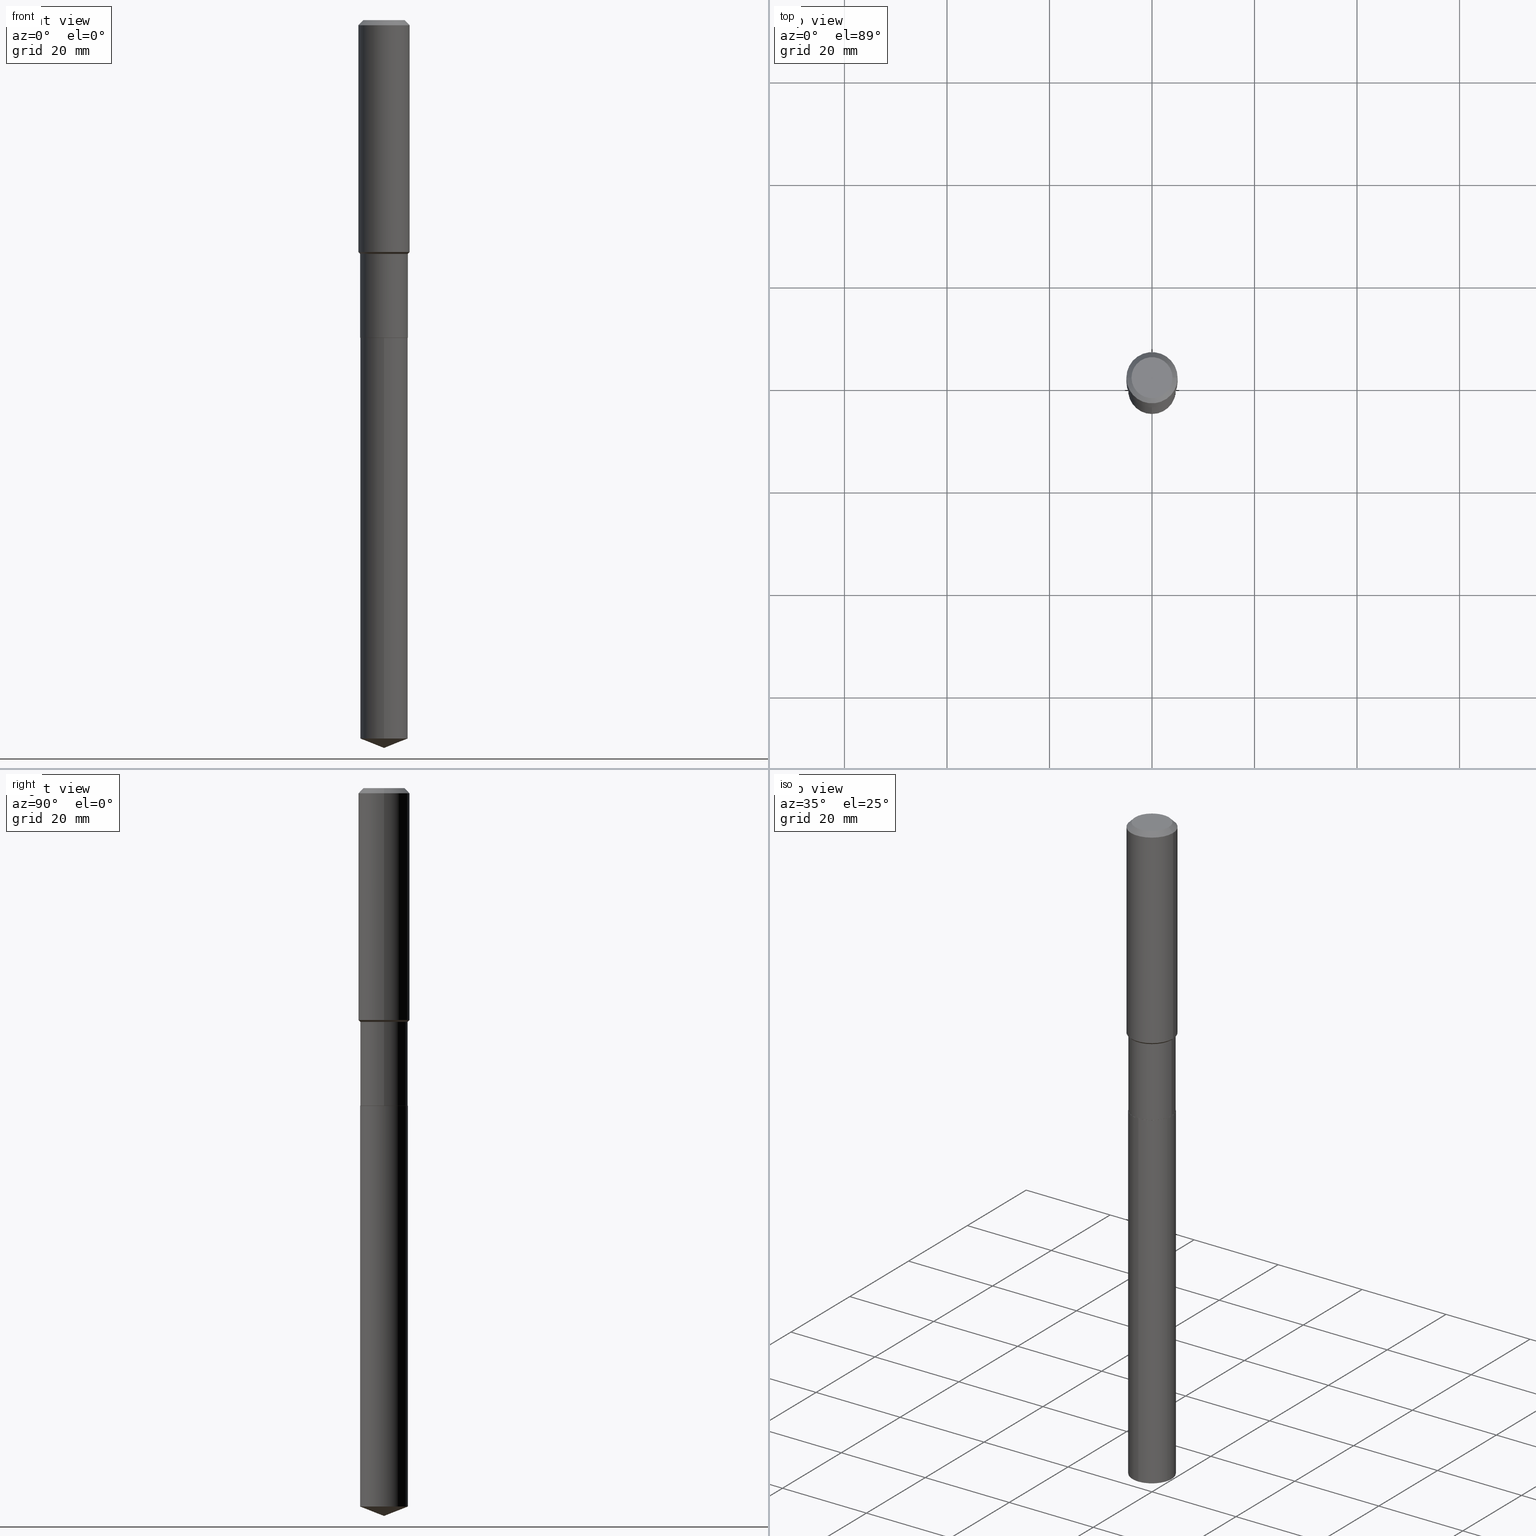
[diagram: canonical four-view strip — front | top / right | iso, engineering-drawing reading convention]
A machine part, canonical four-view strip (front | top / right | iso — engineering-drawing reading convention). The complete STEP part file that produces these views, byte-faithful:
ISO-10303-21;
HEADER;
FILE_DESCRIPTION (( 'STEP AP203' ),
    '1' );
FILE_NAME ('66669.STEP',
    '2024-04-25T03:18:00',
    ( '' ),
    ( '' ),
    'SwSTEP 2.0',
    'SolidWorks 2023',
    '' );
FILE_SCHEMA (( 'CONFIG_CONTROL_DESIGN' ));
ENDSEC;

DATA;
#1 = CARTESIAN_POINT ( 'NONE',  ( 9.627810689950943645E-31, -1.374596203102555315E-16, -0.03937000000000024508 ) ) ;
#2 = EDGE_CURVE ( 'NONE', #48, #182, #49, .T. ) ;
#3 = DIRECTION ( 'NONE',  ( -2.445468806185136597E-29, 3.491481338843145583E-15, 1.000000000000000000 ) ) ;
#4 = ORIENTED_EDGE ( 'NONE', *, *, #108, .T. ) ;
#5 = AXIS2_PLACEMENT_3D ( 'NONE', #399, #218, #180 ) ;
#6 = CARTESIAN_POINT ( 'NONE',  ( 9.627810689950943645E-31, -1.374596203102555315E-16, -0.03937000000000024508 ) ) ;
#7 = CONICAL_SURFACE ( 'NONE', #289, 0.1825499999999999623, 0.7853981633975507526 ) ;
#8 = ADVANCED_BREP_SHAPE_REPRESENTATION ( '66669', ( #93, #423, #388 ), #155 ) ;
#9 = ADVANCED_FACE ( 'NONE', ( #356 ), #204, .T. ) ;
#10 = CARTESIAN_POINT ( 'NONE',  ( 1.300648477808922684E-15, 0.1830499999999914418, -2.440899999999999626 ) ) ;
#11 = DATE_AND_TIME ( #352, #339 ) ;
#12 = DIRECTION ( 'NONE',  ( 2.438088387897960049E-29, -3.491481338843145188E-15, -1.000000000000000000 ) ) ;
#13 = ORIENTED_EDGE ( 'NONE', *, *, #307, .F. ) ;
#14 = CARTESIAN_POINT ( 'NONE',  ( 9.627810689950943645E-31, -1.374596203102555315E-16, -0.03937000000000024508 ) ) ;
#15 = APPLICATION_PROTOCOL_DEFINITION ( 'international standard', 'config_control_design', 1994, #68 ) ;
#16 = ORIENTED_EDGE ( 'NONE', *, *, #59, .T. ) ;
#17 = CARTESIAN_POINT ( 'NONE',  ( -0.1825499999999999623, -7.222611808678056579E-15, -2.440899999999999181 ) ) ;
#18 = DIRECTION ( 'NONE',  ( 1.000000000000000000, -6.982962677686264344E-15, 0.000000000000000000 ) ) ;
#19 = ORIENTED_EDGE ( 'NONE', *, *, #295, .T. ) ;
#20 = DIRECTION ( 'NONE',  ( 0.7071067811865453523, -7.319954787623248157E-15, -0.7071067811865496822 ) ) ;
#21 = AXIS2_PLACEMENT_3D ( 'NONE', #14, #280, #156 ) ;
#22 = DIRECTION ( 'NONE',  ( -6.982962677686265922E-15, -1.000000000000000000, 3.498627837350006195E-15 ) ) ;
#23 = FACE_OUTER_BOUND ( 'NONE', #50, .T. ) ;
#24 = EDGE_CURVE ( 'NONE', #407, #182, #165, .T. ) ;
#25 = EDGE_LOOP ( 'NONE', ( #338, #89, #364, #127 ) ) ;
#26 = DIRECTION ( 'NONE',  ( -6.497071151882119836E-15, -0.9304175679820245737, 0.3665012267242972466 ) ) ;
#27 = FACE_OUTER_BOUND ( 'NONE', #273, .T. ) ;
#28 = UNCERTAINTY_MEASURE_WITH_UNIT (LENGTH_MEASURE( 1.000000000000000082E-05 ), #118, 'distance_accuracy_value', 'NONE');
#29 = CALENDAR_DATE ( 2024, 24, 4 ) ;
#30 = ORIENTED_EDGE ( 'NONE', *, *, #415, .F. ) ;
#31 = DIRECTION ( 'NONE',  ( -2.445468806185136597E-29, 3.491481338843145583E-15, 1.000000000000000000 ) ) ;
#32 = VERTEX_POINT ( 'NONE', #277 ) ;
#33 = AXIS2_PLACEMENT_3D ( 'NONE', #297, #485, #58 ) ;
#34 = CIRCLE ( 'NONE', #345, 0.1968500000000000250 ) ;
#35 = CARTESIAN_POINT ( 'NONE',  ( 5.969144809017297917E-29, -8.522356799982231388E-15, -2.440899999999999181 ) ) ;
#36 = DIRECTION ( 'NONE',  ( -2.445468806185136597E-29, 3.491481338843145583E-15, 1.000000000000000000 ) ) ;
#37 = EDGE_LOOP ( 'NONE', ( #379, #194, #137, #106 ) ) ;
#38 = CARTESIAN_POINT ( 'NONE',  ( 0.1825499999999999623, -9.797096636793858259E-15, -2.440899999999999181 ) ) ;
#39 = CONICAL_SURFACE ( 'NONE', #264, 0.1830499999999999072, 0.7853981633974495002 ) ;
#40 = EDGE_CURVE ( 'NONE', #323, #42, #466, .T. ) ;
#41 = CARTESIAN_POINT ( 'NONE',  ( 9.627810689950943645E-31, -1.374596203102555315E-16, -0.03937000000000024508 ) ) ;
#42 = VERTEX_POINT ( 'NONE', #283 ) ;
#43 = DIRECTION ( 'NONE',  ( 1.000000000000000000, -6.982962677686265922E-15, 0.000000000000000000 ) ) ;
#44 = AXIS2_PLACEMENT_3D ( 'NONE', #66, #36, #276 ) ;
#45 = DIRECTION ( 'NONE',  ( 1.000000000000000000, -6.982962677686265922E-15, 0.000000000000000000 ) ) ;
#46 = DIRECTION ( 'NONE',  ( -2.445428369358333970E-29, 3.491539246680648506E-15, 1.000000000000000000 ) ) ;
#47 = PERSON_AND_ORGANIZATION_ROLE ( 'creator' ) ;
#48 = VERTEX_POINT ( 'NONE', #469 ) ;
#49 = CIRCLE ( 'NONE', #71, 0.1968500000000000250 ) ;
#50 = EDGE_LOOP ( 'NONE', ( #85, #296, #474 ) ) ;
#51 = PERSON_AND_ORGANIZATION ( #308, #404 ) ;
#52 = ORIENTED_EDGE ( 'NONE', *, *, #248, .T. ) ;
#53 = DIRECTION ( 'NONE',  ( 0.7071067811865483499, -2.468850131082265738E-15, 0.7071067811865466846 ) ) ;
#54 = VERTEX_POINT ( 'NONE', #286 ) ;
#55 = FACE_OUTER_BOUND ( 'NONE', #325, .T. ) ;
#56 = EDGE_CURVE ( 'NONE', #460, #187, #259, .T. ) ;
#57 = AXIS2_PLACEMENT_3D ( 'NONE', #319, #465, #83 ) ;
#58 = DIRECTION ( 'NONE',  ( 6.982962677686265922E-15, 1.000000000000000000, -3.491539246680648506E-15 ) ) ;
#59 = EDGE_CURVE ( 'NONE', #391, #120, #263, .T. ) ;
#60 = ORIENTED_EDGE ( 'NONE', *, *, #24, .T. ) ;
#61 = LINE ( 'NONE', #304, #442 ) ;
#62 = ORIENTED_EDGE ( 'NONE', *, *, #84, .F. ) ;
#63 = DIRECTION ( 'NONE',  ( 1.000000000000000000, -6.982962677686266711E-15, 4.876176775795936353E-29 ) ) ;
#64 = VECTOR ( 'NONE', #456, 39.37007874015748143 ) ;
#65 = AXIS2_PLACEMENT_3D ( 'NONE', #192, #384, #43 ) ;
#66 = CARTESIAN_POINT ( 'NONE',  ( 4.356847225099436385E-29, -6.220423153282944485E-15, -1.781599999999998740 ) ) ;
#67 = EDGE_LOOP ( 'NONE', ( #354, #370, #210, #471 ) ) ;
#68 = APPLICATION_CONTEXT ( 'configuration controlled 3d designs of mechanical parts and assemblies' ) ;
#69 = ADVANCED_FACE ( 'NONE', ( #23 ), #387, .T. ) ;
#70 = CARTESIAN_POINT ( 'NONE',  ( 1.300648477808998415E-15, 0.1830499999999914418, -2.440899999999999626 ) ) ;
#71 = AXIS2_PLACEMENT_3D ( 'NONE', #6, #116, #275 ) ;
#72 = CIRCLE ( 'NONE', #214, 0.1830499999999999905 ) ;
#73 = CC_DESIGN_PERSON_AND_ORGANIZATION_ASSIGNMENT ( #51, #377, ( #113 ) ) ;
#74 = PRODUCT ( '66669', '66669', '', ( #243 ) ) ;
#75 = DIRECTION ( 'NONE',  ( 1.000000000000000000, -6.982962677686265922E-15, 4.876223630392693006E-29 ) ) ;
#76 = AXIS2_PLACEMENT_3D ( 'NONE', #290, #369, #409 ) ;
#77 = EDGE_CURVE ( 'NONE', #120, #391, #288, .T. ) ;
#78 = APPROVAL_PERSON_ORGANIZATION ( #410, #139, #328 ) ;
#79 = FACE_OUTER_BOUND ( 'NONE', #247, .T. ) ;
#80 = ADVANCED_FACE ( 'NONE', ( #254 ), #101, .T. ) ;
#81 =( LENGTH_UNIT ( ) NAMED_UNIT ( * ) SI_UNIT ( $, .METRE. ) );
#82 = ORIENTED_EDGE ( 'NONE', *, *, #261, .T. ) ;
#83 = DIRECTION ( 'NONE',  ( 1.000000000000000000, -6.982962677686265922E-15, 4.876176775795935793E-29 ) ) ;
#84 = EDGE_CURVE ( 'NONE', #391, #460, #366, .T. ) ;
#85 = ORIENTED_EDGE ( 'NONE', *, *, #315, .F. ) ;
#86 = PERSON_AND_ORGANIZATION_ROLE ( 'creator' ) ;
#87 = VECTOR ( 'NONE', #26, 39.37007874015748854 ) ;
#88 = CIRCLE ( 'NONE', #65, 0.1830499999999999905 ) ;
#89 = ORIENTED_EDGE ( 'NONE', *, *, #181, .T. ) ;
#90 = DIRECTION ( 'NONE',  ( -2.445468806185136597E-29, 3.491481338843145583E-15, 1.000000000000000000 ) ) ;
#91 = EDGE_LOOP ( 'NONE', ( #82, #203, #302, #340 ) ) ;
#92 = DIRECTION ( 'NONE',  ( 1.000000000000000000, -6.982962677686263555E-15, 0.000000000000000000 ) ) ;
#93 = MANIFOLD_SOLID_BREP ( 'Body-Move/Copy2[1]', #418 ) ;
#94 = CARTESIAN_POINT ( 'NONE',  ( -0.1968500000000001082, 1.398703375343757985E-15, -9.682923725166787881E-30 ) ) ;
#95 = FACE_OUTER_BOUND ( 'NONE', #241, .T. ) ;
#96 = APPROVAL ( #359, 'UNSPECIFIED' ) ;
#97 = COORDINATED_UNIVERSAL_TIME_OFFSET ( 5, 0, .BEHIND. ) ;
#98 = AXIS2_PLACEMENT_3D ( 'NONE', #188, #341, #262 ) ;
#99 = APPROVAL_PERSON_ORGANIZATION ( #463, #96, #121 ) ;
#100 = LINE ( 'NONE', #438, #87 ) ;
#101 = CYLINDRICAL_SURFACE ( 'NONE', #326, 0.1830499999999999905 ) ;
#102 = CARTESIAN_POINT ( 'NONE',  ( 1.367136643440330592E-28, -1.951916746408704425E-14, -5.590499999999999581 ) ) ;
#103 = APPLICATION_CONTEXT ( 'configuration controlled 3d designs of mechanical parts and assemblies' ) ;
#104 = PERSON_AND_ORGANIZATION ( #308, #404 ) ;
#105 = AXIS2_PLACEMENT_3D ( 'NONE', #167, #336, #358 ) ;
#106 = ORIENTED_EDGE ( 'NONE', *, *, #56, .F. ) ;
#107 = CC_DESIGN_PERSON_AND_ORGANIZATION_ASSIGNMENT ( #431, #86, ( #113 ) ) ;
#108 = EDGE_CURVE ( 'NONE', #54, #419, #343, .T. ) ;
#109 = CARTESIAN_POINT ( 'NONE',  ( 5.969144809017297917E-29, -8.522356799982231388E-15, -2.440899999999999181 ) ) ;
#110 = CARTESIAN_POINT ( 'NONE',  ( 0.1830499999999999905, -9.798842377463280551E-15, -2.440399999999999014 ) ) ;
#111 = LINE ( 'NONE', #486, #64 ) ;
#112 = DIRECTION ( 'NONE',  ( -2.445428369358333970E-29, 3.491539246680648506E-15, 1.000000000000000000 ) ) ;
#113 = PRODUCT_DEFINITION_FORMATION_WITH_SPECIFIED_SOURCE ( 'ANY', '', #74, .NOT_KNOWN. ) ;
#114 = CARTESIAN_POINT ( 'NONE',  ( -0.1968500000000002192, -4.821719777939185909E-15, -1.781599999999998740 ) ) ;
#115 = EDGE_LOOP ( 'NONE', ( #447, #208, #321, #292 ) ) ;
#116 = DIRECTION ( 'NONE',  ( -2.445468806185136597E-29, 3.491481338843145583E-15, 1.000000000000000000 ) ) ;
#117 = DIRECTION ( 'NONE',  ( -2.445468806185136597E-29, 3.491481338843145583E-15, 1.000000000000000000 ) ) ;
#118 =( CONVERSION_BASED_UNIT ( 'INCH', #240 ) LENGTH_UNIT ( ) NAMED_UNIT ( #151 ) );
#119 = APPROVAL ( #291, 'UNSPECIFIED' ) ;
#120 = VERTEX_POINT ( 'NONE', #17 ) ;
#121 = APPROVAL_ROLE ( '' ) ;
#122 = ADVANCED_FACE ( 'NONE', ( #27 ), #300, .T. ) ;
#123 = CARTESIAN_POINT ( 'NONE',  ( -0.1830499999999999350, 1.300648477808862928E-15, -9.004110682711602587E-30 ) ) ;
#124 = EDGE_CURVE ( 'NONE', #419, #182, #61, .T. ) ;
#125 = VERTEX_POINT ( 'NONE', #136 ) ;
#126 = CALENDAR_DATE ( 2024, 24, 4 ) ;
#127 = ORIENTED_EDGE ( 'NONE', *, *, #248, .F. ) ;
#128 = LINE ( 'NONE', #142, #172 ) ;
#129 = CLOSED_SHELL ( 'NONE', ( #226, #9, #455, #312, #400, #122, #189, #200, #362, #487, #270, #462 ) ) ;
#130 = APPROVAL_PERSON_ORGANIZATION ( #436, #119, #389 ) ;
#131 = EDGE_CURVE ( 'NONE', #483, #32, #175, .T. ) ;
#132 = ORIENTED_EDGE ( 'NONE', *, *, #355, .T. ) ;
#133 = DIRECTION ( 'NONE',  ( -2.445428369358333970E-29, 3.491539246680648506E-15, 1.000000000000000000 ) ) ;
#134 = CARTESIAN_POINT ( 'NONE',  ( 5.969144809017297917E-29, -8.522356799982231388E-15, -2.440899999999999181 ) ) ;
#135 = DIRECTION ( 'NONE',  ( -0.7071067811866199593, 7.493145998870616062E-15, 0.7071067811864750752 ) ) ;
#136 = CARTESIAN_POINT ( 'NONE',  ( 1.300648477808998218E-15, 0.1830499999999807559, -5.518394687438686219 ) ) ;
#137 = ORIENTED_EDGE ( 'NONE', *, *, #160, .F. ) ;
#138 = DIRECTION ( 'NONE',  ( -2.445468806185136597E-29, 3.491481338843145583E-15, 1.000000000000000000 ) ) ;
#139 = APPROVAL ( #373, 'UNSPECIFIED' ) ;
#140 = CARTESIAN_POINT ( 'NONE',  ( 5.969144809017297917E-29, -8.522356799982231388E-15, -2.440899999999999181 ) ) ;
#141 = DESIGN_CONTEXT ( 'detailed design', #68, 'design' ) ;
#142 = CARTESIAN_POINT ( 'NONE',  ( 0.1830499999999999072, -7.546836913909449440E-15, -1.795399999999998997 ) ) ;
#143 = ORIENTED_EDGE ( 'NONE', *, *, #219, .T. ) ;
#144 = CC_DESIGN_DATE_AND_TIME_ASSIGNMENT ( #445, #255, ( #216 ) ) ;
#145 = ORIENTED_EDGE ( 'NONE', *, *, #169, .T. ) ;
#146 = ADVANCED_FACE ( 'NONE', ( #95 ), #372, .F. ) ;
#147 = AXIS2_PLACEMENT_3D ( 'NONE', #313, #117, #453 ) ;
#148 = DIRECTION ( 'NONE',  ( -2.445428369358333970E-29, 3.491539246680648506E-15, 1.000000000000000000 ) ) ;
#149 = DIRECTION ( 'NONE',  ( 6.611014441532068167E-15, 0.9304175679820272382, 0.3665012267242907518 ) ) ;
#150 = CC_DESIGN_PERSON_AND_ORGANIZATION_ASSIGNMENT ( #104, #176, ( #216 ) ) ;
#151 = DIMENSIONAL_EXPONENTS ( 1.000000000000000000, 0.000000000000000000, 0.000000000000000000, 0.000000000000000000, 0.000000000000000000, 0.000000000000000000, 0.000000000000000000 ) ;
#152 = LINE ( 'NONE', #10, #191 ) ;
#153 = VECTOR ( 'NONE', #479, 39.37007874015748143 ) ;
#154 = AXIS2_PLACEMENT_3D ( 'NONE', #232, #381, #199 ) ;
#155 =( GEOMETRIC_REPRESENTATION_CONTEXT ( 3 ) GLOBAL_UNCERTAINTY_ASSIGNED_CONTEXT ( ( #28 ) ) GLOBAL_UNIT_ASSIGNED_CONTEXT ( ( #118, #163, #461 ) ) REPRESENTATION_CONTEXT ( 'NONE', 'WORKASPACE' ) );
#156 = DIRECTION ( 'NONE',  ( -1.000000000000000000, 6.982962677686265922E-15, 0.000000000000000000 ) ) ;
#157 = CYLINDRICAL_SURFACE ( 'NONE', #147, 0.1968500000000001082 ) ;
#158 = CARTESIAN_POINT ( 'NONE',  ( 0.000000000000000000, 0.000000000000000000, 0.000000000000000000 ) ) ;
#159 = APPROVAL_DATE_TIME ( #11, #119 ) ;
#160 = EDGE_CURVE ( 'NONE', #187, #42, #403, .T. ) ;
#161 = CIRCLE ( 'NONE', #228, 0.1968500000000002192 ) ;
#162 = CIRCLE ( 'NONE', #378, 0.1830499999999999905 ) ;
#163 =( NAMED_UNIT ( * ) PLANE_ANGLE_UNIT ( ) SI_UNIT ( $, .RADIAN. ) );
#164 = ORIENTED_EDGE ( 'NONE', *, *, #446, .T. ) ;
#165 = LINE ( 'NONE', #425, #185 ) ;
#166 = ORIENTED_EDGE ( 'NONE', *, *, #131, .T. ) ;
#167 = CARTESIAN_POINT ( 'NONE',  ( -9.427742298522567634E-47, 1.346031739168368355E-32, 3.855188123715870730E-18 ) ) ;
#168 = CARTESIAN_POINT ( 'NONE',  ( -4.713871149261283817E-47, 6.730158695841841775E-33, 1.927594061857935365E-18 ) ) ;
#169 = EDGE_CURVE ( 'NONE', #42, #437, #250, .T. ) ;
#170 = CARTESIAN_POINT ( 'NONE',  ( -8.260544145390422756E-28, 1.179428662548396618E-13, 33.77957874015748274 ) ) ;
#171 = FACE_OUTER_BOUND ( 'NONE', #25, .T. ) ;
#172 = VECTOR ( 'NONE', #53, 39.37007874015748143 ) ;
#173 = ORIENTED_EDGE ( 'NONE', *, *, #411, .T. ) ;
#174 = CARTESIAN_POINT ( 'NONE',  ( 4.356847225099436385E-29, -6.220423153282944485E-15, -1.781599999999998740 ) ) ;
#175 = LINE ( 'NONE', #396, #153 ) ;
#176 = PERSON_AND_ORGANIZATION_ROLE ( 'classification_officer' ) ;
#177 = CC_DESIGN_PERSON_AND_ORGANIZATION_ASSIGNMENT ( #316, #47, ( #238 ) ) ;
#178 = ORIENTED_EDGE ( 'NONE', *, *, #56, .T. ) ;
#179 = FACE_OUTER_BOUND ( 'NONE', #285, .T. ) ;
#180 = DIRECTION ( 'NONE',  ( 1.000000000000000000, -6.982962677686263555E-15, 0.000000000000000000 ) ) ;
#181 = EDGE_CURVE ( 'NONE', #42, #187, #458, .T. ) ;
#182 = VERTEX_POINT ( 'NONE', #482 ) ;
#183 = EDGE_CURVE ( 'NONE', #187, #407, #128, .T. ) ;
#184 = DIRECTION ( 'NONE',  ( 1.000000000000000000, -6.982962677686263555E-15, 0.000000000000000000 ) ) ;
#185 = VECTOR ( 'NONE', #350, 39.37007874015748143 ) ;
#186 = AXIS2_PLACEMENT_3D ( 'NONE', #245, #327, #63 ) ;
#187 = VERTEX_POINT ( 'NONE', #361 ) ;
#188 = CARTESIAN_POINT ( 'NONE',  ( 1.349493762422942033E-28, -1.926755028262559615E-14, -5.518394687438684443 ) ) ;
#189 = ADVANCED_FACE ( 'NONE', ( #171 ), #432, .T. ) ;
#190 = CARTESIAN_POINT ( 'NONE',  ( 0.1574800000000000089, -1.284169937930321189E-15, 3.855188123724205385E-18 ) ) ;
#191 = VECTOR ( 'NONE', #490, 39.37007874015748143 ) ;
#192 = CARTESIAN_POINT ( 'NONE',  ( 5.967922074614205116E-29, -8.520611059312809095E-15, -2.440399999999999014 ) ) ;
#193 = DIRECTION ( 'NONE',  ( -2.445468806185136597E-29, 3.491481338843145583E-15, 1.000000000000000000 ) ) ;
#194 = ORIENTED_EDGE ( 'NONE', *, *, #40, .T. ) ;
#195 = FACE_OUTER_BOUND ( 'NONE', #67, .T. ) ;
#196 = VECTOR ( 'NONE', #222, 39.37007874015748143 ) ;
#197 = VECTOR ( 'NONE', #441, 39.37007874015748143 ) ;
#198 = AXIS2_PLACEMENT_3D ( 'NONE', #168, #12, #397 ) ;
#199 = DIRECTION ( 'NONE',  ( 1.000000000000000000, -6.982962677686266711E-15, 4.876176775795936353E-29 ) ) ;
#200 = ADVANCED_FACE ( 'NONE', ( #55 ), #448, .T. ) ;
#201 = COORDINATED_UNIVERSAL_TIME_OFFSET ( 5, 0, .BEHIND. ) ;
#202 = SHAPE_DEFINITION_REPRESENTATION ( #385, #8 ) ;
#203 = ORIENTED_EDGE ( 'NONE', *, *, #426, .T. ) ;
#204 = CONICAL_SURFACE ( 'NONE', #21, 0.1968500000000000250, 0.7853981633974452814 ) ;
#205 = CONICAL_SURFACE ( 'NONE', #376, 0.1968500000000000250, 0.7853981633974452814 ) ;
#206 = DIRECTION ( 'NONE',  ( 0.000000000000000000, 0.000000000000000000, 1.000000000000000000 ) ) ;
#207 = ORIENTED_EDGE ( 'NONE', *, *, #444, .F. ) ;
#208 = ORIENTED_EDGE ( 'NONE', *, *, #77, .T. ) ;
#209 = PERSON_AND_ORGANIZATION ( #308, #404 ) ;
#210 = ORIENTED_EDGE ( 'NONE', *, *, #411, .F. ) ;
#211 = CARTESIAN_POINT ( 'NONE',  ( 4.390594694624792213E-29, -6.268605595758980350E-15, -1.795399999999998997 ) ) ;
#212 = DATE_AND_TIME ( #470, #382 ) ;
#213 = DIRECTION ( 'NONE',  ( -2.445428369358333970E-29, 3.491539246680648506E-15, 1.000000000000000000 ) ) ;
#214 = AXIS2_PLACEMENT_3D ( 'NONE', #35, #112, #488 ) ;
#215 = EDGE_CURVE ( 'NONE', #54, #48, #111, .T. ) ;
#216 = SECURITY_CLASSIFICATION ( '', '', #406 ) ;
#217 = EDGE_LOOP ( 'NONE', ( #4, #132 ) ) ;
#218 = DIRECTION ( 'NONE',  ( -2.445468806185136597E-29, 3.491481338843145583E-15, 1.000000000000000000 ) ) ;
#219 = EDGE_CURVE ( 'NONE', #383, #32, #72, .T. ) ;
#220 = ORIENTED_EDGE ( 'NONE', *, *, #183, .F. ) ;
#221 = FACE_OUTER_BOUND ( 'NONE', #260, .T. ) ;
#222 = DIRECTION ( 'NONE',  ( -2.445468806185136877E-29, 3.491481338843145188E-15, 1.000000000000000000 ) ) ;
#223 = AXIS2_PLACEMENT_3D ( 'NONE', #268, #148, #272 ) ;
#224 = CIRCLE ( 'NONE', #242, 0.1830499999999999905 ) ;
#225 = ADVANCED_FACE ( 'NONE', ( #413 ), #342, .T. ) ;
#226 = ADVANCED_FACE ( 'NONE', ( #452 ), #348, .T. ) ;
#227 = CYLINDRICAL_SURFACE ( 'NONE', #154, 0.1830499999999999350 ) ;
#228 = AXIS2_PLACEMENT_3D ( 'NONE', #174, #478, #333 ) ;
#229 = LINE ( 'NONE', #102, #310 ) ;
#230 = CC_DESIGN_DATE_AND_TIME_ASSIGNMENT ( #212, #363, ( #238 ) ) ;
#231 = DIRECTION ( 'NONE',  ( -2.445468806185136877E-29, 3.491481338843145188E-15, 1.000000000000000000 ) ) ;
#232 = CARTESIAN_POINT ( 'NONE',  ( 0.000000000000000000, 0.000000000000000000, 0.000000000000000000 ) ) ;
#233 = AXIS2_PLACEMENT_3D ( 'NONE', #421, #46, #278 ) ;
#234 = EDGE_CURVE ( 'NONE', #125, #483, #464, .T. ) ;
#235 = APPLICATION_PROTOCOL_DEFINITION ( 'international standard', 'config_control_design', 1994, #103 ) ;
#236 = PLANE ( 'NONE',  #57 ) ;
#237 = DATE_AND_TIME ( #126, #279 ) ;
#238 = PRODUCT_DEFINITION ( 'UNKNOWN', '', #113, #141 ) ;
#239 = LINE ( 'NONE', #408, #251 ) ;
#240 = LENGTH_MEASURE_WITH_UNIT ( LENGTH_MEASURE( 0.02539999999999999897 ), #81 );
#241 = EDGE_LOOP ( 'NONE', ( #253, #143 ) ) ;
#242 = AXIS2_PLACEMENT_3D ( 'NONE', #351, #303, #344 ) ;
#243 = MECHANICAL_CONTEXT ( 'NONE', #103, 'mechanical' ) ;
#244 = ORIENTED_EDGE ( 'NONE', *, *, #40, .F. ) ;
#245 = CARTESIAN_POINT ( 'NONE',  ( 0.000000000000000000, 0.000000000000000000, 0.000000000000000000 ) ) ;
#246 = CARTESIAN_POINT ( 'NONE',  ( -1.278231318150335969E-15, -0.1830500000000192251, -5.518394687438683555 ) ) ;
#247 = EDGE_LOOP ( 'NONE', ( #298, #402 ) ) ;
#248 = EDGE_CURVE ( 'NONE', #437, #407, #489, .T. ) ;
#249 = DIRECTION ( 'NONE',  ( -2.445428369358333970E-29, 3.491539246680648506E-15, 1.000000000000000000 ) ) ;
#250 = LINE ( 'NONE', #472, #375 ) ;
#251 = VECTOR ( 'NONE', #135, 39.37007874015748143 ) ;
#252 = CC_DESIGN_APPROVAL ( #139, ( #216 ) ) ;
#253 = ORIENTED_EDGE ( 'NONE', *, *, #424, .T. ) ;
#254 = FACE_OUTER_BOUND ( 'NONE', #335, .T. ) ;
#255 = DATE_TIME_ROLE ( 'classification_date' ) ;
#256 = CC_DESIGN_PERSON_AND_ORGANIZATION_ASSIGNMENT ( #209, #393, ( #74 ) ) ;
#257 = EDGE_LOOP ( 'NONE', ( #347, #398, #440, #394 ) ) ;
#258 = FACE_OUTER_BOUND ( 'NONE', #257, .T. ) ;
#259 = LINE ( 'NONE', #334, #196 ) ;
#260 = EDGE_LOOP ( 'NONE', ( #468, #145, #266, #220 ) ) ;
#261 = EDGE_CURVE ( 'NONE', #483, #125, #414, .T. ) ;
#262 = DIRECTION ( 'NONE',  ( -6.982962677686264344E-15, -1.000000000000000000, 5.969621401069135991E-15 ) ) ;
#263 = CIRCLE ( 'NONE', #76, 0.1825499999999999623 ) ;
#264 = AXIS2_PLACEMENT_3D ( 'NONE', #299, #293, #395 ) ;
#265 = CC_DESIGN_APPROVAL ( #96, ( #113 ) ) ;
#266 = ORIENTED_EDGE ( 'NONE', *, *, #346, .F. ) ;
#267 = DIRECTION ( 'NONE',  ( -2.445468806185136597E-29, 3.491481338843145583E-15, 1.000000000000000000 ) ) ;
#268 = CARTESIAN_POINT ( 'NONE',  ( 5.969144809017297917E-29, -8.522356799982231388E-15, -2.440899999999999181 ) ) ;
#269 = CARTESIAN_POINT ( 'NONE',  ( 1.367116729889776270E-28, -1.951945015856816032E-14, -5.590499999999999581 ) ) ;
#270 = ADVANCED_FACE ( 'NONE', ( #79 ), #236, .F. ) ;
#271 = CC_DESIGN_APPROVAL ( #119, ( #238 ) ) ;
#272 = DIRECTION ( 'NONE',  ( -6.982962677686264344E-15, -1.000000000000000000, 2.984810700534567995E-15 ) ) ;
#273 = EDGE_LOOP ( 'NONE', ( #244, #164, #178, #330 ) ) ;
#274 = DIRECTION ( 'NONE',  ( 1.000000000000000000, -6.982962677686265922E-15, 0.000000000000000000 ) ) ;
#275 = DIRECTION ( 'NONE',  ( 1.000000000000000000, -6.982962677686265922E-15, 0.000000000000000000 ) ) ;
#276 = DIRECTION ( 'NONE',  ( 1.000000000000000000, -6.982962677686265922E-15, 0.000000000000000000 ) ) ;
#277 = CARTESIAN_POINT ( 'NONE',  ( -1.278231318150411108E-15, -0.1830500000000085115, -2.440899999999998737 ) ) ;
#278 = DIRECTION ( 'NONE',  ( -6.982962677686264344E-15, -1.000000000000000000, 5.969621401069135991E-15 ) ) ;
#279 = LOCAL_TIME ( 23, 18, 0.000000000000000000, #281 ) ;
#280 = DIRECTION ( 'NONE',  ( 2.445468806185136597E-29, -3.491481338843145583E-15, -1.000000000000000000 ) ) ;
#281 = COORDINATED_UNIVERSAL_TIME_OFFSET ( 5, 0, .BEHIND. ) ;
#282 = ORIENTED_EDGE ( 'NONE', *, *, #2, .F. ) ;
#283 = CARTESIAN_POINT ( 'NONE',  ( -0.1830499999999999072, -6.093959849727030611E-15, -1.795399999999998997 ) ) ;
#284 = FACE_OUTER_BOUND ( 'NONE', #115, .T. ) ;
#285 = EDGE_LOOP ( 'NONE', ( #207, #449, #429 ) ) ;
#286 = CARTESIAN_POINT ( 'NONE',  ( -0.1574800000000000089, 1.168406772637159618E-15, 3.855188123707939751E-18 ) ) ;
#287 = APPROVAL_DATE_TIME ( #237, #96 ) ;
#288 = CIRCLE ( 'NONE', #317, 0.1825499999999999623 ) ;
#289 = AXIS2_PLACEMENT_3D ( 'NONE', #314, #390, #18 ) ;
#290 = CARTESIAN_POINT ( 'NONE',  ( 5.969144809017297917E-29, -8.522356799982231388E-15, -2.440899999999999181 ) ) ;
#291 = APPROVAL_STATUS ( 'not_yet_approved' ) ;
#292 = ORIENTED_EDGE ( 'NONE', *, *, #446, .F. ) ;
#293 = DIRECTION ( 'NONE',  ( -2.445468806185136597E-29, 3.491481338843145583E-15, 1.000000000000000000 ) ) ;
#294 = CARTESIAN_POINT ( 'NONE',  ( 4.390594694624792213E-29, -6.268605595758980350E-15, -1.795399999999998997 ) ) ;
#295 = EDGE_CURVE ( 'NONE', #120, #323, #239, .T. ) ;
#296 = ORIENTED_EDGE ( 'NONE', *, *, #444, .T. ) ;
#297 = CARTESIAN_POINT ( 'NONE',  ( 5.969144809017297917E-29, -8.522356799982231388E-15, -2.440899999999999181 ) ) ;
#298 = ORIENTED_EDGE ( 'NONE', *, *, #59, .F. ) ;
#299 = CARTESIAN_POINT ( 'NONE',  ( 4.390594694624792213E-29, -6.268605595758980350E-15, -1.795399999999998997 ) ) ;
#300 = CYLINDRICAL_SURFACE ( 'NONE', #186, 0.1830499999999999350 ) ;
#301 = AXIS2_PLACEMENT_3D ( 'NONE', #481, #138, #75 ) ;
#302 = ORIENTED_EDGE ( 'NONE', *, *, #424, .F. ) ;
#303 = DIRECTION ( 'NONE',  ( -2.445428369358333970E-29, 3.491539246680648506E-15, 1.000000000000000000 ) ) ;
#304 = CARTESIAN_POINT ( 'NONE',  ( 0.1968500000000000250, -1.487948651171581601E-15, -0.03937000000000024508 ) ) ;
#305 = DATE_AND_TIME ( #401, #349 ) ;
#306 = AXIS2_PLACEMENT_3D ( 'NONE', #109, #267, #416 ) ;
#307 = EDGE_CURVE ( 'NONE', #437, #48, #331, .T. ) ;
#308 = PERSON ( 'UNSPECIFIED', 'UNSPECIFIED', 'UNSPECIFIED', ('UNSPECIFIED'), ('UNSPECIFIED'), ('UNSPECIFIED') ) ;
#309 = DIRECTION ( 'NONE',  ( 1.000000000000000000, -6.982962677686266711E-15, 4.876176775795935793E-29 ) ) ;
#310 = VECTOR ( 'NONE', #149, 39.37007874015747433 ) ;
#311 = EDGE_LOOP ( 'NONE', ( #16, #19, #30, #62 ) ) ;
#312 = ADVANCED_FACE ( 'NONE', ( #221 ), #39, .T. ) ;
#313 = CARTESIAN_POINT ( 'NONE',  ( 0.000000000000000000, 0.000000000000000000, 0.000000000000000000 ) ) ;
#314 = CARTESIAN_POINT ( 'NONE',  ( 5.969144809017297917E-29, -8.522356799982231388E-15, -2.440899999999999181 ) ) ;
#315 = EDGE_CURVE ( 'NONE', #368, #483, #100, .T. ) ;
#316 = PERSON_AND_ORGANIZATION ( #308, #404 ) ;
#317 = AXIS2_PLACEMENT_3D ( 'NONE', #140, #90, #443 ) ;
#318 = PRODUCT_RELATED_PRODUCT_CATEGORY ( 'detail', '', ( #74 ) ) ;
#319 = CARTESIAN_POINT ( 'NONE',  ( 5.969144809017297917E-29, -8.522356799982231388E-15, -2.440899999999999181 ) ) ;
#320 = ORIENTED_EDGE ( 'NONE', *, *, #215, .F. ) ;
#321 = ORIENTED_EDGE ( 'NONE', *, *, #84, .T. ) ;
#322 = COORDINATED_UNIVERSAL_TIME_OFFSET ( 5, 0, .BEHIND. ) ;
#323 = VERTEX_POINT ( 'NONE', #371 ) ;
#324 = DIRECTION ( 'NONE',  ( -6.982962677686264344E-15, -1.000000000000000000, 2.984810700534567995E-15 ) ) ;
#325 = EDGE_LOOP ( 'NONE', ( #13, #52, #60, #282 ) ) ;
#326 = AXIS2_PLACEMENT_3D ( 'NONE', #134, #213, #324 ) ;
#327 = DIRECTION ( 'NONE',  ( -2.445468806185136597E-29, 3.491481338843145583E-15, 1.000000000000000000 ) ) ;
#328 = APPROVAL_ROLE ( '' ) ;
#329 = ADVANCED_FACE ( 'NONE', ( #179 ), #422, .T. ) ;
#330 = ORIENTED_EDGE ( 'NONE', *, *, #181, .F. ) ;
#331 = LINE ( 'NONE', #94, #392 ) ;
#332 = DIRECTION ( 'NONE',  ( -6.982962677686265922E-15, -1.000000000000000000, 3.498627837350006195E-15 ) ) ;
#333 = DIRECTION ( 'NONE',  ( 1.000000000000000000, -6.982962677686265922E-15, 0.000000000000000000 ) ) ;
#334 = CARTESIAN_POINT ( 'NONE',  ( 0.1830499999999999350, -1.278231318150470667E-15, 8.925841588094458053E-30 ) ) ;
#335 = EDGE_LOOP ( 'NONE', ( #360, #477, #166, #374 ) ) ;
#336 = DIRECTION ( 'NONE',  ( -2.445468806185136597E-29, 3.491481338843145583E-15, 1.000000000000000000 ) ) ;
#337 = AXIS2_PLACEMENT_3D ( 'NONE', #211, #31, #184 ) ;
#338 = ORIENTED_EDGE ( 'NONE', *, *, #169, .F. ) ;
#339 = LOCAL_TIME ( 23, 18, 0.000000000000000000, #201 ) ;
#340 = ORIENTED_EDGE ( 'NONE', *, *, #131, .F. ) ;
#341 = DIRECTION ( 'NONE',  ( -2.445428369358333970E-29, 3.491539246680648506E-15, 1.000000000000000000 ) ) ;
#342 = CYLINDRICAL_SURFACE ( 'NONE', #223, 0.1830499999999999905 ) ;
#343 = CIRCLE ( 'NONE', #105, 0.1574800000000000089 ) ;
#344 = DIRECTION ( 'NONE',  ( -6.982962677686264344E-15, -1.000000000000000000, 2.984810700534567995E-15 ) ) ;
#345 = AXIS2_PLACEMENT_3D ( 'NONE', #41, #193, #274 ) ;
#346 = EDGE_CURVE ( 'NONE', #407, #437, #161, .T. ) ;
#347 = ORIENTED_EDGE ( 'NONE', *, *, #124, .F. ) ;
#348 = CONICAL_SURFACE ( 'NONE', #306, 0.1825499999999999623, 0.7853981633975507526 ) ;
#349 = LOCAL_TIME ( 23, 18, 0.000000000000000000, #476 ) ;
#350 = DIRECTION ( 'NONE',  ( -2.445468806185136877E-29, 3.491481338843145188E-15, 1.000000000000000000 ) ) ;
#351 = CARTESIAN_POINT ( 'NONE',  ( 5.969144809017297917E-29, -8.522356799982231388E-15, -2.440899999999999181 ) ) ;
#352 = CALENDAR_DATE ( 2024, 24, 4 ) ;
#353 = CIRCLE ( 'NONE', #301, 0.1574800000000000089 ) ;
#354 = ORIENTED_EDGE ( 'NONE', *, *, #346, .T. ) ;
#355 = EDGE_CURVE ( 'NONE', #419, #54, #353, .T. ) ;
#356 = FACE_OUTER_BOUND ( 'NONE', #433, .T. ) ;
#357 = DIRECTION ( 'NONE',  ( 1.000000000000000000, 0.000000000000000000, 0.000000000000000000 ) ) ;
#358 = DIRECTION ( 'NONE',  ( 1.000000000000000000, -6.982962677686265922E-15, 4.876223630392693006E-29 ) ) ;
#359 = APPROVAL_STATUS ( 'not_yet_approved' ) ;
#360 = ORIENTED_EDGE ( 'NONE', *, *, #426, .F. ) ;
#361 = CARTESIAN_POINT ( 'NONE',  ( 0.1830499999999999072, -7.546836913909449440E-15, -1.795399999999998997 ) ) ;
#362 = ADVANCED_FACE ( 'NONE', ( #258 ), #205, .T. ) ;
#363 = DATE_TIME_ROLE ( 'creation_date' ) ;
#364 = ORIENTED_EDGE ( 'NONE', *, *, #183, .T. ) ;
#365 = AXIS2_PLACEMENT_3D ( 'NONE', #475, #249, #332 ) ;
#366 = LINE ( 'NONE', #435, #197 ) ;
#367 = APPROVAL_DATE_TIME ( #305, #139 ) ;
#368 = VERTEX_POINT ( 'NONE', #269 ) ;
#369 = DIRECTION ( 'NONE',  ( -2.445468806185136597E-29, 3.491481338843145583E-15, 1.000000000000000000 ) ) ;
#370 = ORIENTED_EDGE ( 'NONE', *, *, #307, .T. ) ;
#371 = CARTESIAN_POINT ( 'NONE',  ( -0.1830499999999999905, -6.093959849727030611E-15, -2.440399999999999014 ) ) ;
#372 = PLANE ( 'NONE',  #33 ) ;
#373 = APPROVAL_STATUS ( 'not_yet_approved' ) ;
#374 = ORIENTED_EDGE ( 'NONE', *, *, #219, .F. ) ;
#375 = VECTOR ( 'NONE', #405, 39.37007874015748143 ) ;
#376 = AXIS2_PLACEMENT_3D ( 'NONE', #1, #417, #380 ) ;
#377 = PERSON_AND_ORGANIZATION_ROLE ( 'design_supplier' ) ;
#378 = AXIS2_PLACEMENT_3D ( 'NONE', #420, #3, #45 ) ;
#379 = ORIENTED_EDGE ( 'NONE', *, *, #415, .T. ) ;
#380 = DIRECTION ( 'NONE',  ( -1.000000000000000000, 6.982962677686265922E-15, 0.000000000000000000 ) ) ;
#381 = DIRECTION ( 'NONE',  ( -2.445468806185136597E-29, 3.491481338843145583E-15, 1.000000000000000000 ) ) ;
#382 = LOCAL_TIME ( 23, 18, 0.000000000000000000, #322 ) ;
#383 = VERTEX_POINT ( 'NONE', #70 ) ;
#384 = DIRECTION ( 'NONE',  ( -2.445468806185136597E-29, 3.491481338843145583E-15, 1.000000000000000000 ) ) ;
#385 = PRODUCT_DEFINITION_SHAPE ( 'NONE', 'NONE',  #238 ) ;
#386 = CARTESIAN_POINT ( 'NONE',  ( 0.1968500000000002192, -7.595019356385486094E-15, -1.781599999999998740 ) ) ;
#387 = CONICAL_SURFACE ( 'NONE', #365, 99.94676754583991851, 1.195550537616119291 ) ;
#388 = AXIS2_PLACEMENT_3D ( 'NONE', #158, #206, #357 ) ;
#389 = APPROVAL_ROLE ( '' ) ;
#390 = DIRECTION ( 'NONE',  ( -2.445468806185136597E-29, 3.491481338843145583E-15, 1.000000000000000000 ) ) ;
#391 = VERTEX_POINT ( 'NONE', #38 ) ;
#392 = VECTOR ( 'NONE', #430, 39.37007874015748143 ) ;
#393 = PERSON_AND_ORGANIZATION_ROLE ( 'design_owner' ) ;
#394 = ORIENTED_EDGE ( 'NONE', *, *, #2, .T. ) ;
#395 = DIRECTION ( 'NONE',  ( 1.000000000000000000, -6.982962677686263555E-15, 0.000000000000000000 ) ) ;
#396 = CARTESIAN_POINT ( 'NONE',  ( -1.278231318150411108E-15, -0.1830500000000085115, -2.440899999999998737 ) ) ;
#397 = DIRECTION ( 'NONE',  ( -1.000000000000000000, 6.982962677686265922E-15, -4.876176775795935793E-29 ) ) ;
#398 = ORIENTED_EDGE ( 'NONE', *, *, #108, .F. ) ;
#399 = CARTESIAN_POINT ( 'NONE',  ( 4.390594694624792213E-29, -6.268605595758980350E-15, -1.795399999999998997 ) ) ;
#400 = ADVANCED_FACE ( 'NONE', ( #459 ), #227, .T. ) ;
#401 = CALENDAR_DATE ( 2024, 24, 4 ) ;
#402 = ORIENTED_EDGE ( 'NONE', *, *, #77, .F. ) ;
#403 = CIRCLE ( 'NONE', #337, 0.1830499999999999072 ) ;
#404 = ORGANIZATION ( 'UNSPECIFIED', 'UNSPECIFIED', '' ) ;
#405 = DIRECTION ( 'NONE',  ( -0.7071067811865483499, 7.493145998870357316E-15, 0.7071067811865466846 ) ) ;
#406 = SECURITY_CLASSIFICATION_LEVEL ( 'unclassified' ) ;
#407 = VERTEX_POINT ( 'NONE', #386 ) ;
#408 = CARTESIAN_POINT ( 'NONE',  ( -0.1825499999999999623, -7.225261035852168569E-15, -2.440899999999999181 ) ) ;
#409 = DIRECTION ( 'NONE',  ( 1.000000000000000000, -6.982962677686264344E-15, 0.000000000000000000 ) ) ;
#410 = PERSON_AND_ORGANIZATION ( #308, #404 ) ;
#411 = EDGE_CURVE ( 'NONE', #182, #48, #34, .T. ) ;
#412 = CARTESIAN_POINT ( 'NONE',  ( 0.000000000000000000, 0.000000000000000000, 0.000000000000000000 ) ) ;
#413 = FACE_OUTER_BOUND ( 'NONE', #91, .T. ) ;
#414 = CIRCLE ( 'NONE', #233, 0.1830499999999999905 ) ;
#415 = EDGE_CURVE ( 'NONE', #460, #323, #162, .T. ) ;
#416 = DIRECTION ( 'NONE',  ( 1.000000000000000000, -6.982962677686264344E-15, 0.000000000000000000 ) ) ;
#417 = DIRECTION ( 'NONE',  ( 2.445468806185136597E-29, -3.491481338843145583E-15, -1.000000000000000000 ) ) ;
#418 = CLOSED_SHELL ( 'NONE', ( #225, #69, #329, #80, #146 ) ) ;
#419 = VERTEX_POINT ( 'NONE', #190 ) ;
#420 = CARTESIAN_POINT ( 'NONE',  ( 5.967922074614205116E-29, -8.520611059312809095E-15, -2.440399999999999014 ) ) ;
#421 = CARTESIAN_POINT ( 'NONE',  ( 1.349493762422942033E-28, -1.926755028262559615E-14, -5.518394687438684443 ) ) ;
#422 = CONICAL_SURFACE ( 'NONE', #473, 99.94676754583991851, 1.195550537616119291 ) ;
#423 = MANIFOLD_SOLID_BREP ( 'Body-Move/Copy2[2]', #129 ) ;
#424 = EDGE_CURVE ( 'NONE', #32, #383, #224, .T. ) ;
#425 = CARTESIAN_POINT ( 'NONE',  ( 0.1968500000000001082, -1.374596203102542397E-15, 9.598753983154305062E-30 ) ) ;
#426 = EDGE_CURVE ( 'NONE', #125, #383, #152, .T. ) ;
#427 = FACE_OUTER_BOUND ( 'NONE', #217, .T. ) ;
#428 = ORIENTED_EDGE ( 'NONE', *, *, #355, .F. ) ;
#429 = ORIENTED_EDGE ( 'NONE', *, *, #234, .F. ) ;
#430 = DIRECTION ( 'NONE',  ( -2.445468806185136877E-29, 3.491481338843145188E-15, 1.000000000000000000 ) ) ;
#431 = PERSON_AND_ORGANIZATION ( #308, #404 ) ;
#432 = CONICAL_SURFACE ( 'NONE', #484, 0.1830499999999999072, 0.7853981633974495002 ) ;
#433 = EDGE_LOOP ( 'NONE', ( #428, #480, #173, #320 ) ) ;
#434 = LOCAL_TIME ( 23, 18, 0.000000000000000000, #97 ) ;
#435 = CARTESIAN_POINT ( 'NONE',  ( 0.1825499999999999623, -9.797096636793858259E-15, -2.440899999999999181 ) ) ;
#436 = PERSON_AND_ORGANIZATION ( #308, #404 ) ;
#437 = VERTEX_POINT ( 'NONE', #114 ) ;
#438 = CARTESIAN_POINT ( 'NONE',  ( 1.367116729889776494E-28, -1.951945015856816032E-14, -5.590499999999999581 ) ) ;
#439 = DIRECTION ( 'NONE',  ( -2.445468806185136597E-29, 3.491481338843145583E-15, 1.000000000000000000 ) ) ;
#440 = ORIENTED_EDGE ( 'NONE', *, *, #215, .T. ) ;
#441 = DIRECTION ( 'NONE',  ( 0.7071067811866199593, -2.468850131083015945E-15, 0.7071067811864750752 ) ) ;
#442 = VECTOR ( 'NONE', #20, 39.37007874015748143 ) ;
#443 = DIRECTION ( 'NONE',  ( 1.000000000000000000, -6.982962677686264344E-15, 0.000000000000000000 ) ) ;
#444 = EDGE_CURVE ( 'NONE', #368, #125, #229, .T. ) ;
#445 = DATE_AND_TIME ( #29, #434 ) ;
#446 = EDGE_CURVE ( 'NONE', #323, #460, #88, .T. ) ;
#447 = ORIENTED_EDGE ( 'NONE', *, *, #295, .F. ) ;
#448 = CYLINDRICAL_SURFACE ( 'NONE', #450, 0.1968500000000001082 ) ;
#449 = ORIENTED_EDGE ( 'NONE', *, *, #315, .T. ) ;
#450 = AXIS2_PLACEMENT_3D ( 'NONE', #412, #454, #309 ) ;
#451 = CC_DESIGN_SECURITY_CLASSIFICATION ( #216, ( #113 ) ) ;
#452 = FACE_OUTER_BOUND ( 'NONE', #311, .T. ) ;
#453 = DIRECTION ( 'NONE',  ( 1.000000000000000000, -6.982962677686266711E-15, 4.876176775795935793E-29 ) ) ;
#454 = DIRECTION ( 'NONE',  ( -2.445468806185136597E-29, 3.491481338843145583E-15, 1.000000000000000000 ) ) ;
#455 = ADVANCED_FACE ( 'NONE', ( #195 ), #157, .T. ) ;
#456 = DIRECTION ( 'NONE',  ( -0.7071067811865453523, 2.468850131082234184E-15, -0.7071067811865496822 ) ) ;
#457 = VECTOR ( 'NONE', #231, 39.37007874015748143 ) ;
#458 = CIRCLE ( 'NONE', #5, 0.1830499999999999072 ) ;
#459 = FACE_OUTER_BOUND ( 'NONE', #37, .T. ) ;
#460 = VERTEX_POINT ( 'NONE', #110 ) ;
#461 =( NAMED_UNIT ( * ) SI_UNIT ( $, .STERADIAN. ) SOLID_ANGLE_UNIT ( ) );
#462 = ADVANCED_FACE ( 'NONE', ( #284 ), #7, .T. ) ;
#463 = PERSON_AND_ORGANIZATION ( #308, #404 ) ;
#464 = CIRCLE ( 'NONE', #98, 0.1830499999999999905 ) ;
#465 = DIRECTION ( 'NONE',  ( -2.438088387897960049E-29, 3.491481338843145188E-15, 1.000000000000000000 ) ) ;
#466 = LINE ( 'NONE', #123, #457 ) ;
#467 = PLANE ( 'NONE',  #198 ) ;
#468 = ORIENTED_EDGE ( 'NONE', *, *, #160, .T. ) ;
#469 = CARTESIAN_POINT ( 'NONE',  ( -0.1968500000000000250, -1.780238011452841457E-15, -0.03937000000000024508 ) ) ;
#470 = CALENDAR_DATE ( 2024, 24, 4 ) ;
#471 = ORIENTED_EDGE ( 'NONE', *, *, #24, .F. ) ;
#472 = CARTESIAN_POINT ( 'NONE',  ( -0.1830499999999999072, -4.967957117950118211E-15, -1.795399999999998997 ) ) ;
#473 = AXIS2_PLACEMENT_3D ( 'NONE', #170, #133, #22 ) ;
#474 = ORIENTED_EDGE ( 'NONE', *, *, #261, .F. ) ;
#475 = CARTESIAN_POINT ( 'NONE',  ( -8.260544145390422756E-28, 1.179428662548396618E-13, 33.77957874015748274 ) ) ;
#476 = COORDINATED_UNIVERSAL_TIME_OFFSET ( 5, 0, .BEHIND. ) ;
#477 = ORIENTED_EDGE ( 'NONE', *, *, #234, .T. ) ;
#478 = DIRECTION ( 'NONE',  ( -2.445468806185136597E-29, 3.491481338843145583E-15, 1.000000000000000000 ) ) ;
#479 = DIRECTION ( 'NONE',  ( -2.445428369358333970E-29, 3.491539246680648506E-15, 1.000000000000000000 ) ) ;
#480 = ORIENTED_EDGE ( 'NONE', *, *, #124, .T. ) ;
#481 = CARTESIAN_POINT ( 'NONE',  ( -9.427742298522567634E-47, 1.346031739168368355E-32, 3.855188123715870730E-18 ) ) ;
#482 = CARTESIAN_POINT ( 'NONE',  ( 0.1968500000000000250, -1.512055823412797189E-15, -0.03937000000000024508 ) ) ;
#483 = VERTEX_POINT ( 'NONE', #246 ) ;
#484 = AXIS2_PLACEMENT_3D ( 'NONE', #294, #439, #92 ) ;
#485 = DIRECTION ( 'NONE',  ( 2.445428369358333409E-29, -3.491539246680648506E-15, -1.000000000000000000 ) ) ;
#486 = CARTESIAN_POINT ( 'NONE',  ( -0.1968500000000000250, 1.237136582792286225E-15, -0.03937000000000024508 ) ) ;
#487 = ADVANCED_FACE ( 'NONE', ( #427 ), #467, .F. ) ;
#488 = DIRECTION ( 'NONE',  ( -6.982962677686264344E-15, -1.000000000000000000, 2.984810700534567995E-15 ) ) ;
#489 = CIRCLE ( 'NONE', #44, 0.1968500000000002192 ) ;
#490 = DIRECTION ( 'NONE',  ( -2.445428369358333970E-29, 3.491539246680648506E-15, 1.000000000000000000 ) ) ;
ENDSEC;
END-ISO-10303-21;
